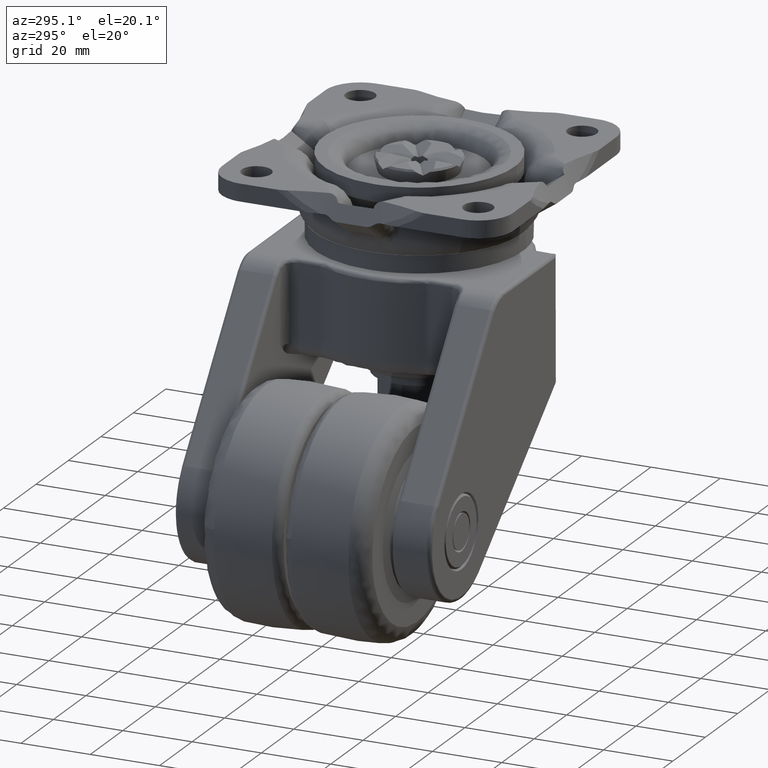
[diagram: clean part render]
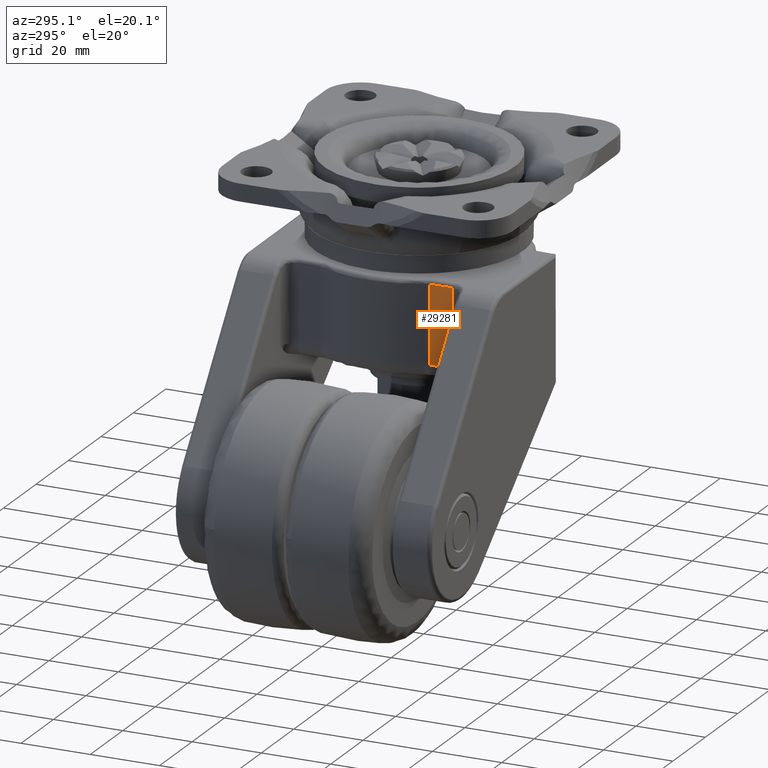
[diagram: same view with one face highlighted and labeled with its STEP entity id]
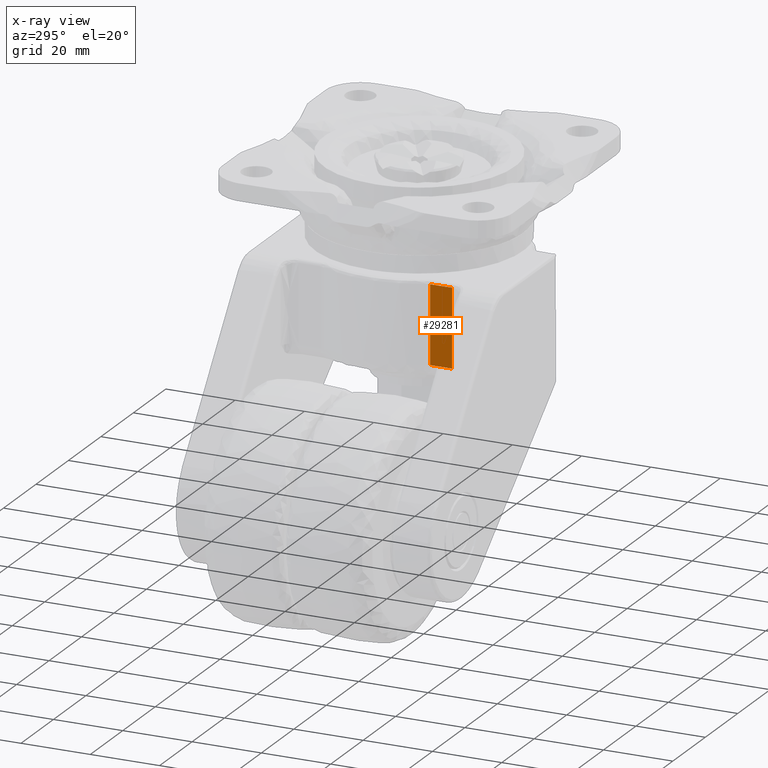
[diagram: x-ray of the same camera — body ghosted, the highlighted face saturated]
A machine part, auxiliary view. The second image highlights one B-rep face of the part: STEP entity #29281.
The next image is the same camera in x-ray: the body ghosted, the highlighted face saturated — about 0% of this face is hidden behind the body in this view.
In plain terms, the highlighted face is a freeform B-spline surface patch.
Its self-contained STEP definition (entity closure, byte-faithful):
#27709=CARTESIAN_POINT('',(-27.150564000000099,-22.149999999999999,-7.499999999999890));
#27710=VERTEX_POINT('',#27709);
#27770=CARTESIAN_POINT('',(-27.150564000000099,-15.836442987044100,-7.499999999999890));
#27771=VERTEX_POINT('',#27770);
#27785=CARTESIAN_POINT('',(-27.150564000000099,-22.149999999999999,-7.499999999999890));
#27786=CARTESIAN_POINT('',(-27.150564000000099,-15.836442987044100,-7.499999999999890));
#27787=QUASI_UNIFORM_CURVE('',1,(#27785,#27786),.UNSPECIFIED.,.F.,.U.);
#27788=EDGE_CURVE('',#27710,#27771,#27787,.T.);
#27994=CARTESIAN_POINT('',(-27.150564000000099,-15.836442987044100,-30.0));
#27995=VERTEX_POINT('',#27994);
#28055=CARTESIAN_POINT('',(-27.150564000000099,-22.149999999999999,-30.0));
#28056=VERTEX_POINT('',#28055);
#28070=CARTESIAN_POINT('',(-27.150564000000099,-15.836442987044100,-30.0));
#28071=CARTESIAN_POINT('',(-27.150564000000099,-22.149999999999999,-30.0));
#28072=QUASI_UNIFORM_CURVE('',1,(#28070,#28071),.UNSPECIFIED.,.F.,.U.);
#28073=EDGE_CURVE('',#27995,#28056,#28072,.T.);
#28611=CARTESIAN_POINT('',(-27.150564000000099,-15.836442987044100,-7.499999999999890));
#28612=CARTESIAN_POINT('',(-27.150564000000099,-15.836442987044100,-30.0));
#28613=QUASI_UNIFORM_CURVE('',1,(#28611,#28612),.UNSPECIFIED.,.F.,.U.);
#28614=EDGE_CURVE('',#27771,#27995,#28613,.T.);
#28647=CARTESIAN_POINT('',(-27.150564000000099,-22.149999999999999,-30.0));
#28648=CARTESIAN_POINT('',(-27.150564000000099,-22.149999999999999,-7.499999999999890));
#28649=QUASI_UNIFORM_CURVE('',1,(#28647,#28648),.UNSPECIFIED.,.F.,.U.);
#28650=EDGE_CURVE('',#28056,#27710,#28649,.T.);
#29270=CARTESIAN_POINT('',(-27.150564000000099,-22.465361804957311,-31.123874956390640));
#29271=CARTESIAN_POINT('',(-27.150564000000099,-22.465361804957311,-6.376124440112223));
#29272=CARTESIAN_POINT('',(-27.150564000000099,-15.521080674058400,-31.123874956390640));
#29273=CARTESIAN_POINT('',(-27.150564000000099,-15.521080674058400,-6.376124440112223));
#29274=B_SPLINE_SURFACE_WITH_KNOTS('',1,1,((#29270,#29272),(#29271,#29273)),.UNSPECIFIED.,.F.,.F.,.U.,(2,2),(2,2),(0.0,24.747750516278419),(0.0,6.944281130898904),.UNSPECIFIED.);
#29275=ORIENTED_EDGE('',*,*,#28650,.T.);
#29276=ORIENTED_EDGE('',*,*,#27788,.T.);
#29277=ORIENTED_EDGE('',*,*,#28614,.T.);
#29278=ORIENTED_EDGE('',*,*,#28073,.T.);
#29279=EDGE_LOOP('',(#29275,#29276,#29277,#29278));
#29280=FACE_OUTER_BOUND('',#29279,.T.);
#29281=ADVANCED_FACE('',(#29280),#29274,.T.);